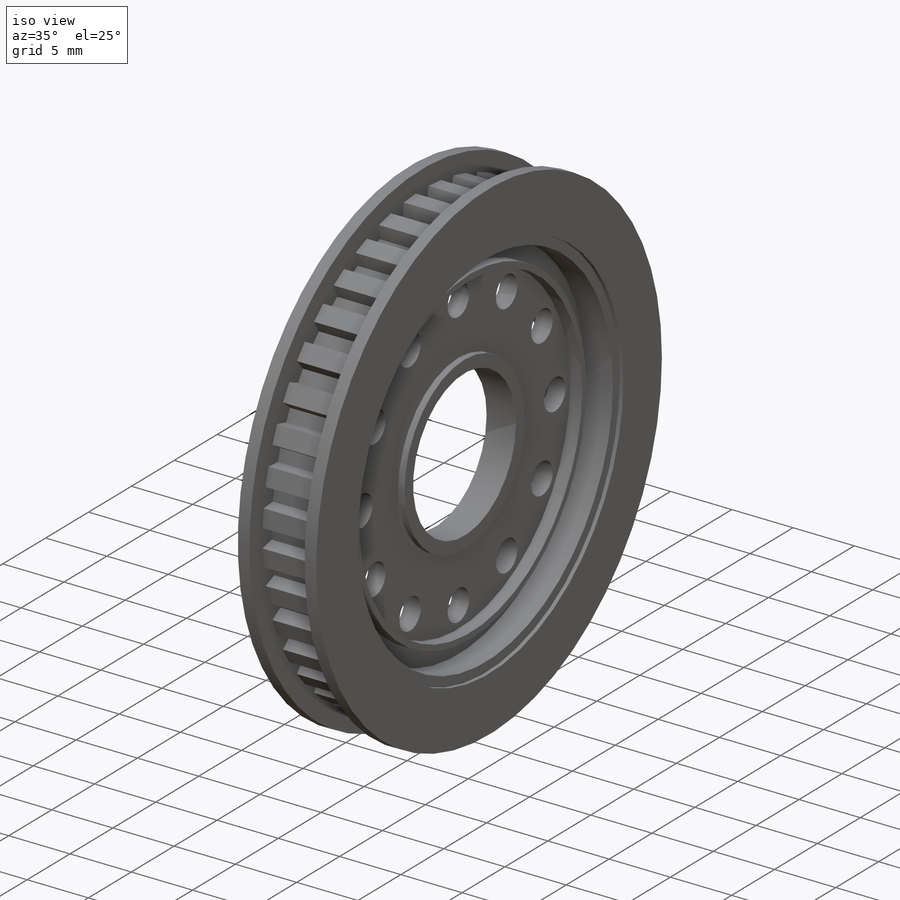
[diagram: iso view]
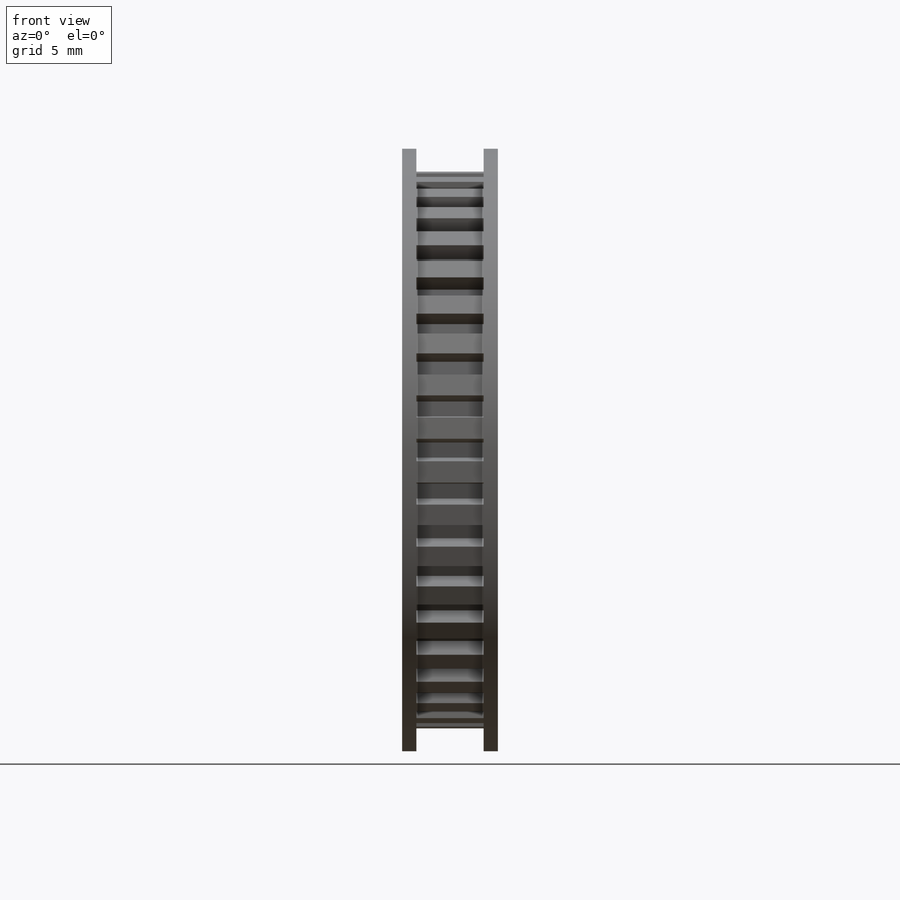
[diagram: front view]
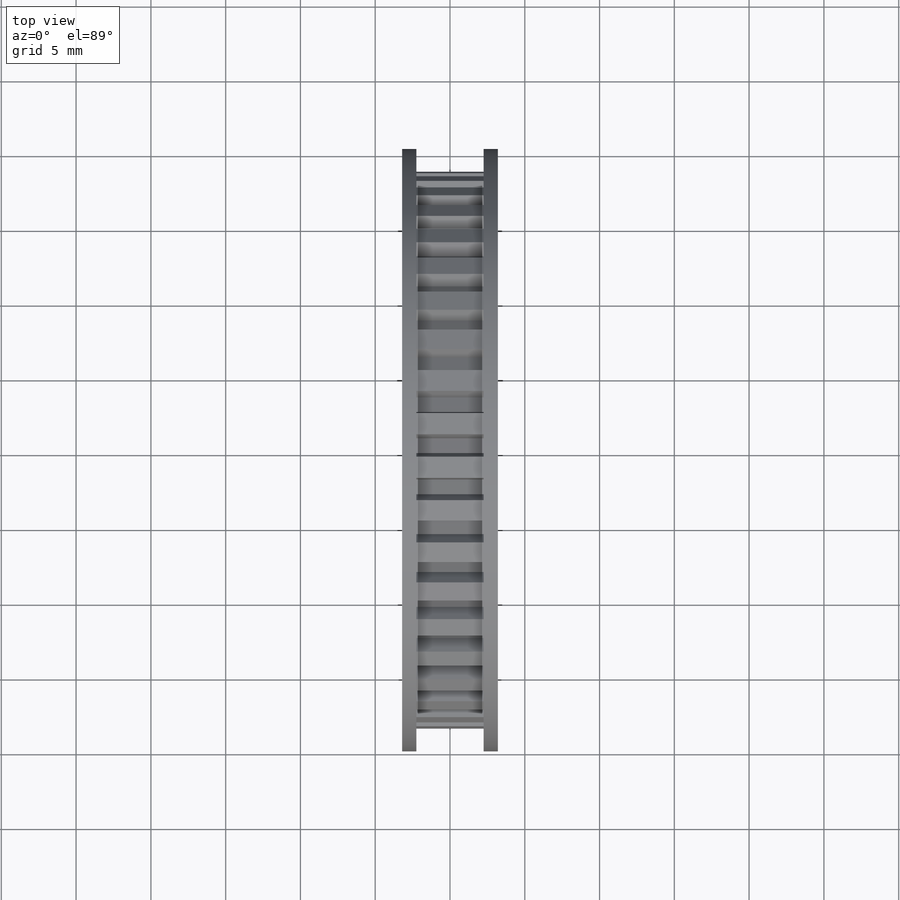
[diagram: top view]
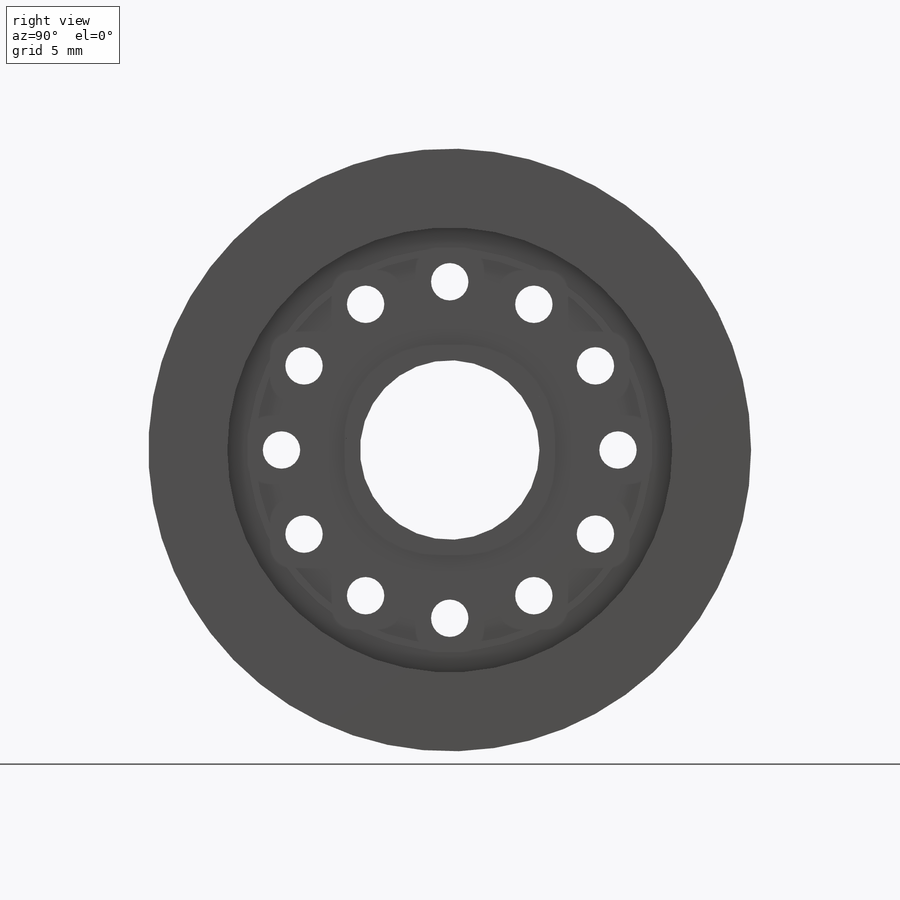
[diagram: right view]
SOLIDWORKS PART (.sldprt)
format: sldprt  version: not decoded by parser v0  size: 398,848 bytes
history: native  units: mm
features: plane x3, sketch x3, cut_extrude x2, material x1, revolve x1, mirror x1, pattern_circular x1 (+9 scaffold rows collapsed)
feature tree (21):
  scaffold x9  (default folders/planes/origin — collapsed)
  material  "PVC hart"
  plane  "Ebene vorne"
  plane  "Ebene oben"
  plane  "Ebene rechts"
  sketch  "Skizze1"  dims[c1.D1=12.0mm c1.D2=14.0mm c1.D3=~11.231448mm c1.D4=6.4mm c1.D5=4.5mm c1.D6=4.5mm c1.D7=5.4mm c2.D6=31.3mm c2.D7=29.75mm c2.D8=26.0mm c2.D9=40.3mm c2.D10=0.3mm c2.D11=1.5mm c2.D12=2.5mm c2.D13=~3.915724mm c2.D3=0.8mm c3.D13=1.8mm c3.D3=2.4mm c4.D13=26.95mm c4.D14=37.25mm]
  revolve  "Rotation1"  Angle=360deg
  mirror  "Spiegeln1"
  sketch  "Skizze2"  dims[D2=2.5mm D3=11.25mm D1=12.0]
  cut_extrude  "Schnitt-Linear austragen1"  [1 undecoded]
  sketch  "Skizze3"  dims[c1.D1=1.5mm c1.D2=2.6mm c1.D3=1.0mm c2.D2=2.6mm]
  cut_extrude  "Schnitt-Linear austragen2"  Depth=4.5mm
  pattern_circular  "Kreismuster1"  Count=40 Angle=9deg
decode coverage: 6 of 8 modeling features carry decoded parameters
note: ~ marks probable driven/reference dimensions
note: 1 parameter value undecoded
note: suppression state not decoded; provenance and decode notes live in map.json
